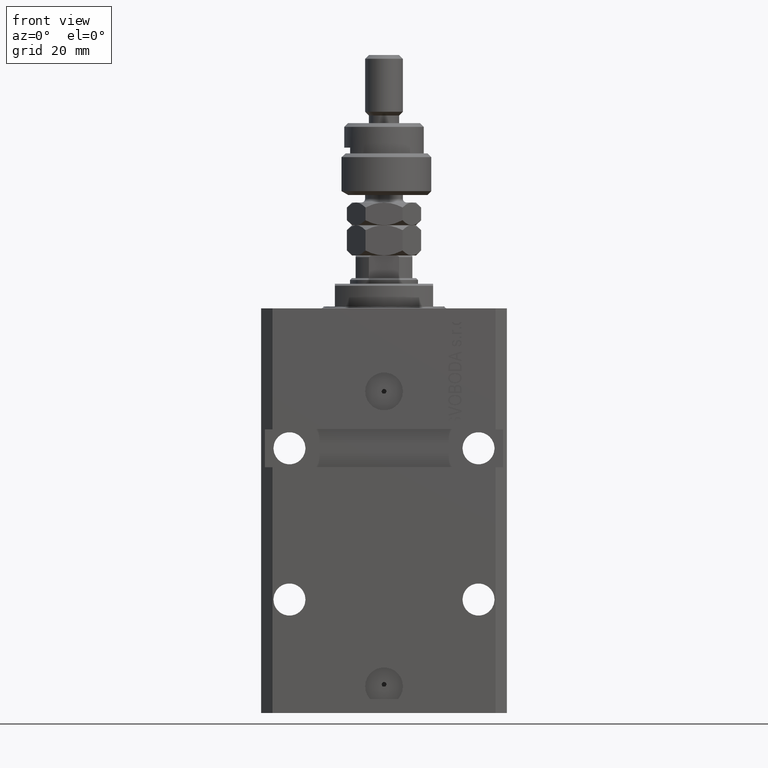
[diagram: clean part render]
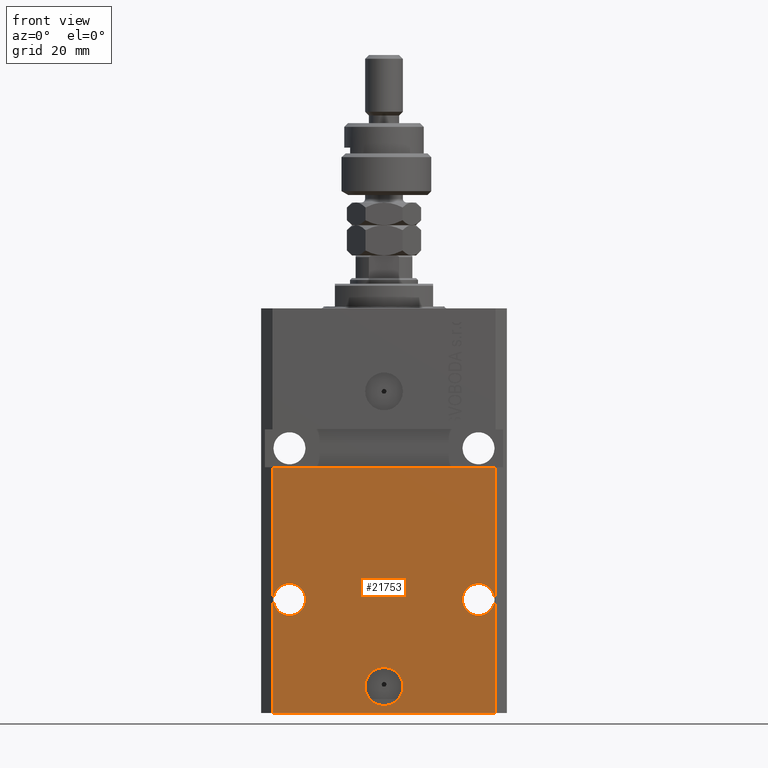
[diagram: same view with one face highlighted and labeled with its STEP entity id]
A machine part, front view. The second image highlights one B-rep face of the part: STEP entity #21753.
In plain terms, the highlighted planar face has unit normal (0, -1, 0).
Its self-contained STEP definition (entity closure, byte-faithful):
#3 = FACE_BOUND ( 'NONE', #47265, .T. ) ;
#253 = CARTESIAN_POINT ( 'NONE',  ( 29.49999999999650058, -22.49999999999949196, -41.99999999999998579 ) ) ;
#1094 = CARTESIAN_POINT ( 'NONE',  ( -29.49999999999650413, -22.49999999999949907, -107.0000000000000000 ) ) ;
#1124 = AXIS2_PLACEMENT_3D ( 'NONE', #42924, #4600, #15844 ) ;
#1546 = VERTEX_POINT ( 'NONE', #34433 ) ;
#2188 = CARTESIAN_POINT ( 'NONE',  ( -29.49999999999650413, -22.49999999999949907, -107.0000000000000000 ) ) ;
#2551 = CARTESIAN_POINT ( 'NONE',  ( -29.49999999999650413, -22.49999999999949907, -41.99999999999999289 ) ) ;
#2874 = CARTESIAN_POINT ( 'NONE',  ( -25.00000000000000000, -22.49999999999949907, -76.99999999999998579 ) ) ;
#3151 = VERTEX_POINT ( 'NONE', #2188 ) ;
#3690 = DIRECTION ( 'NONE',  ( 1.000000000000000000, 1.176083712526788232E-16, 0.000000000000000000 ) ) ;
#3986 = CARTESIAN_POINT ( 'NONE',  ( 5.000000000000008882, -22.49999999999949551, -99.99999999999998579 ) ) ;
#4600 = DIRECTION ( 'NONE',  ( 1.176083712526788232E-16, -1.000000000000000000, 0.000000000000000000 ) ) ;
#5306 = ORIENTED_EDGE ( 'NONE', *, *, #26961, .F. ) ;
#5391 = CIRCLE ( 'NONE', #20089, 5.000000000000006217 ) ;
#5797 = CARTESIAN_POINT ( 'NONE',  ( 2.646188353185214061E-15, -22.49999999999949551, -99.99999999999998579 ) ) ;
#7639 = CARTESIAN_POINT ( 'NONE',  ( 2.646188353185214061E-15, -22.49999999999949551, -99.99999999999998579 ) ) ;
#8354 = DIRECTION ( 'NONE',  ( 0.000000000000000000, 0.000000000000000000, 1.000000000000000000 ) ) ;
#8525 = LINE ( 'NONE', #1094, #39618 ) ;
#8772 = DIRECTION ( 'NONE',  ( 0.000000000000000000, 0.000000000000000000, 1.000000000000000000 ) ) ;
#8857 = EDGE_CURVE ( 'NONE', #3151, #11217, #23839, .T. ) ;
#9998 = DIRECTION ( 'NONE',  ( -1.000000000000000000, 0.000000000000000000, 0.000000000000000000 ) ) ;
#10474 = AXIS2_PLACEMENT_3D ( 'NONE', #20812, #23880, #27736 ) ;
#10831 = VERTEX_POINT ( 'NONE', #50247 ) ;
#11217 = VERTEX_POINT ( 'NONE', #24543 ) ;
#11788 = CIRCLE ( 'NONE', #29718, 4.249999999976592058 ) ;
#11945 = CARTESIAN_POINT ( 'NONE',  ( 29.49999999999650413, -22.49999999999949196, -107.0000000000000000 ) ) ;
#11998 = AXIS2_PLACEMENT_3D ( 'NONE', #23849, #12372, #47608 ) ;
#12188 = LINE ( 'NONE', #11945, #27887 ) ;
#12372 = DIRECTION ( 'NONE',  ( 1.176083712526788232E-16, -1.000000000000000000, 0.000000000000000000 ) ) ;
#13079 = EDGE_CURVE ( 'NONE', #23176, #44197, #16656, .T. ) ;
#15844 = DIRECTION ( 'NONE',  ( 1.000000000000000000, 1.176083712526788232E-16, 0.000000000000000000 ) ) ;
#16190 = CARTESIAN_POINT ( 'NONE',  ( -29.49999999999650413, -22.49999999999949907, -107.0000000000000000 ) ) ;
#16656 = CIRCLE ( 'NONE', #41904, 5.000000000000006217 ) ;
#17107 = VERTEX_POINT ( 'NONE', #33612 ) ;
#19168 = EDGE_CURVE ( 'NONE', #26108, #21728, #44000, .T. ) ;
#20089 = AXIS2_PLACEMENT_3D ( 'NONE', #7639, #46708, #38793 ) ;
#20632 = DIRECTION ( 'NONE',  ( 1.000000000000000000, 0.000000000000000000, 0.000000000000000000 ) ) ;
#20704 = AXIS2_PLACEMENT_3D ( 'NONE', #21723, #33481, #9998 ) ;
#20812 = CARTESIAN_POINT ( 'NONE',  ( 25.00000000000000711, -22.49999999999949196, -76.99999999999998579 ) ) ;
#21465 = EDGE_CURVE ( 'NONE', #10831, #17107, #38644, .T. ) ;
#21723 = CARTESIAN_POINT ( 'NONE',  ( -25.00000000000000000, -22.49999999999949907, -76.99999999999998579 ) ) ;
#21728 = VERTEX_POINT ( 'NONE', #253 ) ;
#21753 = ADVANCED_FACE ( 'NONE', ( #3, #43422, #23997, #39573 ), #39072, .T. ) ;
#22198 = EDGE_LOOP ( 'NONE', ( #5306, #49086 ) ) ;
#22252 = ORIENTED_EDGE ( 'NONE', *, *, #30873, .F. ) ;
#22653 = CIRCLE ( 'NONE', #10474, 4.249999999989057642 ) ;
#23176 = VERTEX_POINT ( 'NONE', #3986 ) ;
#23268 = VECTOR ( 'NONE', #47573, 1000.000000000000000 ) ;
#23839 = LINE ( 'NONE', #16190, #27894 ) ;
#23849 = CARTESIAN_POINT ( 'NONE',  ( 25.00000000000000711, -22.49999999999949196, -76.99999999999998579 ) ) ;
#23880 = DIRECTION ( 'NONE',  ( 1.176083712526788232E-16, -1.000000000000000000, 0.000000000000000000 ) ) ;
#23997 = FACE_BOUND ( 'NONE', #22198, .T. ) ;
#24543 = CARTESIAN_POINT ( 'NONE',  ( 29.49999999999650413, -22.49999999999949196, -107.0000000000000000 ) ) ;
#24830 = EDGE_LOOP ( 'NONE', ( #30816, #36652 ) ) ;
#26108 = VERTEX_POINT ( 'NONE', #2551 ) ;
#26961 = EDGE_CURVE ( 'NONE', #17107, #10831, #11788, .T. ) ;
#27736 = DIRECTION ( 'NONE',  ( 1.000000000000000000, 0.000000000000000000, 0.000000000000000000 ) ) ;
#27887 = VECTOR ( 'NONE', #8354, 1000.000000000000000 ) ;
#27894 = VECTOR ( 'NONE', #3690, 1000.000000000000000 ) ;
#28313 = DIRECTION ( 'NONE',  ( 1.176083712526788232E-16, -1.000000000000000000, 0.000000000000000000 ) ) ;
#28520 = VERTEX_POINT ( 'NONE', #47028 ) ;
#29127 = CARTESIAN_POINT ( 'NONE',  ( -5.000000000000003553, -22.49999999999949551, -99.99999999999998579 ) ) ;
#29718 = AXIS2_PLACEMENT_3D ( 'NONE', #2874, #37597, #33776 ) ;
#30176 = EDGE_CURVE ( 'NONE', #3151, #26108, #8525, .T. ) ;
#30816 = ORIENTED_EDGE ( 'NONE', *, *, #32030, .F. ) ;
#30873 = EDGE_CURVE ( 'NONE', #44197, #23176, #5391, .T. ) ;
#31015 = ORIENTED_EDGE ( 'NONE', *, *, #45914, .T. ) ;
#32004 = CARTESIAN_POINT ( 'NONE',  ( -32.49999999999650413, -22.49999999999949907, -41.99999999999999289 ) ) ;
#32030 = EDGE_CURVE ( 'NONE', #1546, #28520, #38888, .T. ) ;
#33481 = DIRECTION ( 'NONE',  ( 1.176083712526788232E-16, -1.000000000000000000, 0.000000000000000000 ) ) ;
#33612 = CARTESIAN_POINT ( 'NONE',  ( -20.75000000002340883, -22.49999999999949907, -76.99999999999998579 ) ) ;
#33776 = DIRECTION ( 'NONE',  ( -1.000000000000000000, 0.000000000000000000, 0.000000000000000000 ) ) ;
#34433 = CARTESIAN_POINT ( 'NONE',  ( 29.24999999998906475, -22.49999999999949196, -76.99999999999998579 ) ) ;
#34741 = EDGE_CURVE ( 'NONE', #28520, #1546, #22653, .T. ) ;
#35300 = ORIENTED_EDGE ( 'NONE', *, *, #8857, .T. ) ;
#36652 = ORIENTED_EDGE ( 'NONE', *, *, #34741, .F. ) ;
#37597 = DIRECTION ( 'NONE',  ( 1.176083712526788232E-16, -1.000000000000000000, 0.000000000000000000 ) ) ;
#38383 = ORIENTED_EDGE ( 'NONE', *, *, #30176, .F. ) ;
#38644 = CIRCLE ( 'NONE', #20704, 4.249999999976592058 ) ;
#38793 = DIRECTION ( 'NONE',  ( 1.000000000000000000, 0.000000000000000000, 0.000000000000000000 ) ) ;
#38888 = CIRCLE ( 'NONE', #11998, 4.249999999989057642 ) ;
#39072 = PLANE ( 'NONE',  #1124 ) ;
#39573 = FACE_OUTER_BOUND ( 'NONE', #49091, .T. ) ;
#39618 = VECTOR ( 'NONE', #8772, 1000.000000000000000 ) ;
#41533 = ORIENTED_EDGE ( 'NONE', *, *, #13079, .F. ) ;
#41904 = AXIS2_PLACEMENT_3D ( 'NONE', #5797, #28313, #20632 ) ;
#42924 = CARTESIAN_POINT ( 'NONE',  ( -29.49999999999650413, -22.49999999999949907, -107.0000000000000000 ) ) ;
#43422 = FACE_BOUND ( 'NONE', #24830, .T. ) ;
#44000 = LINE ( 'NONE', #32004, #23268 ) ;
#44197 = VERTEX_POINT ( 'NONE', #29127 ) ;
#45009 = ORIENTED_EDGE ( 'NONE', *, *, #19168, .F. ) ;
#45914 = EDGE_CURVE ( 'NONE', #11217, #21728, #12188, .T. ) ;
#46708 = DIRECTION ( 'NONE',  ( 1.176083712526788232E-16, -1.000000000000000000, 0.000000000000000000 ) ) ;
#47028 = CARTESIAN_POINT ( 'NONE',  ( 20.75000000001094946, -22.49999999999949196, -76.99999999999998579 ) ) ;
#47265 = EDGE_LOOP ( 'NONE', ( #41533, #22252 ) ) ;
#47573 = DIRECTION ( 'NONE',  ( 1.000000000000000000, 1.067522139062765303E-16, 1.067522139062765303E-16 ) ) ;
#47608 = DIRECTION ( 'NONE',  ( 1.000000000000000000, 0.000000000000000000, 0.000000000000000000 ) ) ;
#49086 = ORIENTED_EDGE ( 'NONE', *, *, #21465, .F. ) ;
#49091 = EDGE_LOOP ( 'NONE', ( #45009, #38383, #35300, #31015 ) ) ;
#50247 = CARTESIAN_POINT ( 'NONE',  ( -29.24999999997659472, -22.49999999999949907, -76.99999999999998579 ) ) ;